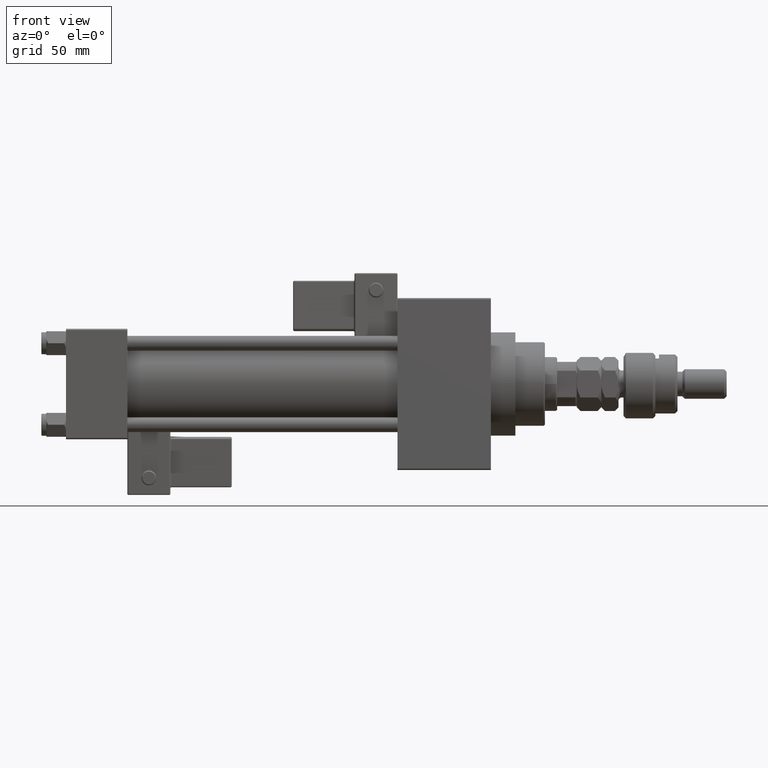
[diagram: clean part render]
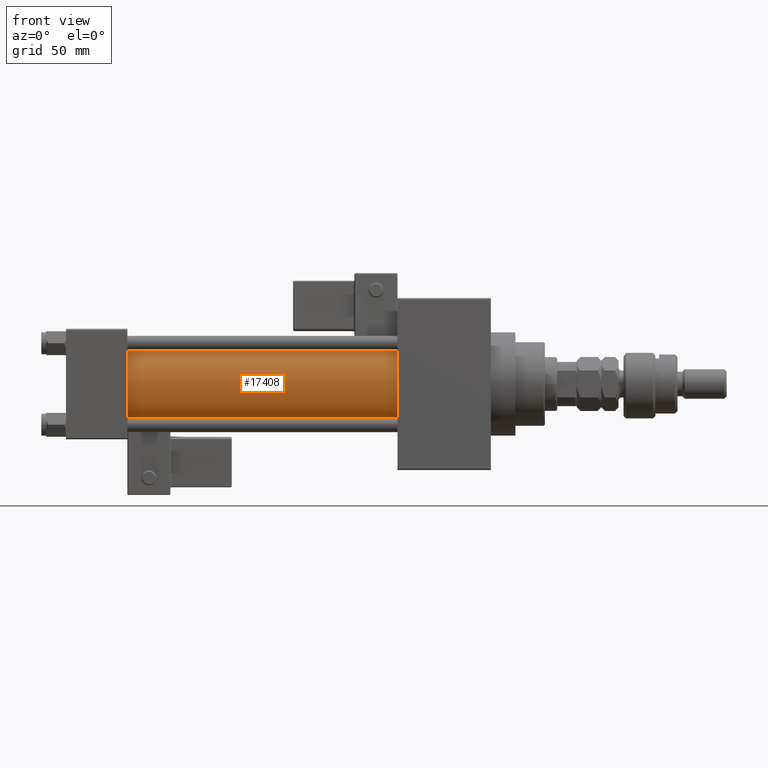
[diagram: same view with one face highlighted and labeled with its STEP entity id]
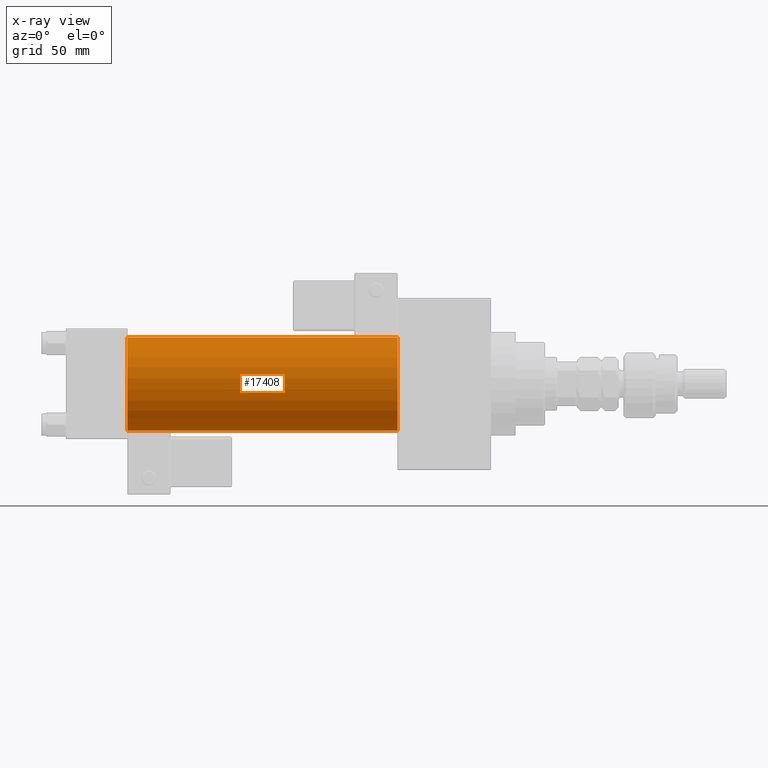
[diagram: x-ray of the same camera — body ghosted, the highlighted face saturated]
A machine part, front view. The second image highlights one B-rep face of the part: STEP entity #17408.
The next image is the same camera in x-ray: the body ghosted, the highlighted face saturated — about 0% of this face is hidden behind the body in this view.
In plain terms, the highlighted cylindrical surface (partial cylindrical patch) has radius 19 mm, axis along (-1, -0, -0).
Its self-contained STEP definition (entity closure, byte-faithful):
#1885 = CARTESIAN_POINT ( 'NONE',  ( 135.0000000000000000, -2.602085213965210642E-15, 19.00000000000000000 ) ) ;
#2328 = EDGE_CURVE ( 'NONE', #6091, #54136, #30664, .T. ) ;
#4030 = EDGE_CURVE ( 'NONE', #54136, #42906, #39319, .T. ) ;
#4797 = DIRECTION ( 'NONE',  ( -1.000000000000000000, -0.000000000000000000, -0.000000000000000000 ) ) ;
#6091 = VERTEX_POINT ( 'NONE', #7346 ) ;
#6566 = CYLINDRICAL_SURFACE ( 'NONE', #22304, 19.00000000000000000 ) ;
#7346 = CARTESIAN_POINT ( 'NONE',  ( 135.0000000000000000, -2.602085213965210642E-15, 19.00000000000000000 ) ) ;
#10232 = ORIENTED_EDGE ( 'NONE', *, *, #39417, .F. ) ;
#10669 = FACE_OUTER_BOUND ( 'NONE', #46422, .T. ) ;
#11807 = ORIENTED_EDGE ( 'NONE', *, *, #2328, .T. ) ;
#12424 = CARTESIAN_POINT ( 'NONE',  ( 135.0000000000000000, -2.752562955852396712E-16, -19.00000000000000000 ) ) ;
#14252 = VECTOR ( 'NONE', #4797, 1000.000000000000000 ) ;
#16738 = CARTESIAN_POINT ( 'NONE',  ( 135.0000000000000000, -2.602085213965210642E-15, 0.000000000000000000 ) ) ;
#16967 = DIRECTION ( 'NONE',  ( -1.000000000000000000, -0.000000000000000000, -0.000000000000000000 ) ) ;
#17408 = ADVANCED_FACE ( 'NONE', ( #10669 ), #6566, .T. ) ;
#18367 = ORIENTED_EDGE ( 'NONE', *, *, #4030, .T. ) ;
#20684 = CARTESIAN_POINT ( 'NONE',  ( 135.0000000000000000, -2.752562955852396712E-16, -19.00000000000000000 ) ) ;
#22285 = DIRECTION ( 'NONE',  ( 0.000000000000000000, 0.000000000000000000, 1.000000000000000000 ) ) ;
#22304 = AXIS2_PLACEMENT_3D ( 'NONE', #27638, #16967, #50396 ) ;
#22803 = CARTESIAN_POINT ( 'NONE',  ( 24.99999999999999289, -2.602085213965210642E-15, 0.000000000000000000 ) ) ;
#25833 = DIRECTION ( 'NONE',  ( 1.000000000000000000, -0.000000000000000000, 0.000000000000000000 ) ) ;
#25851 = VERTEX_POINT ( 'NONE', #12424 ) ;
#27638 = CARTESIAN_POINT ( 'NONE',  ( 135.0000000000000000, -2.602085213965210642E-15, 0.000000000000000000 ) ) ;
#27717 = ORIENTED_EDGE ( 'NONE', *, *, #35922, .F. ) ;
#30664 = LINE ( 'NONE', #1885, #31518 ) ;
#30792 = AXIS2_PLACEMENT_3D ( 'NONE', #16738, #50160, #41938 ) ;
#31518 = VECTOR ( 'NONE', #39956, 1000.000000000000000 ) ;
#33294 = LINE ( 'NONE', #20684, #14252 ) ;
#35171 = CIRCLE ( 'NONE', #30792, 19.00000000000000000 ) ;
#35922 = EDGE_CURVE ( 'NONE', #25851, #42906, #33294, .T. ) ;
#39319 = CIRCLE ( 'NONE', #42845, 19.00000000000000000 ) ;
#39417 = EDGE_CURVE ( 'NONE', #6091, #25851, #35171, .T. ) ;
#39956 = DIRECTION ( 'NONE',  ( -1.000000000000000000, -0.000000000000000000, -0.000000000000000000 ) ) ;
#41938 = DIRECTION ( 'NONE',  ( 0.000000000000000000, 0.000000000000000000, -1.000000000000000000 ) ) ;
#42845 = AXIS2_PLACEMENT_3D ( 'NONE', #22803, #25833, #22285 ) ;
#42906 = VERTEX_POINT ( 'NONE', #45566 ) ;
#45566 = CARTESIAN_POINT ( 'NONE',  ( 24.99999999999999289, -2.752562955852396712E-16, -19.00000000000000000 ) ) ;
#46422 = EDGE_LOOP ( 'NONE', ( #27717, #10232, #11807, #18367 ) ) ;
#50160 = DIRECTION ( 'NONE',  ( 1.000000000000000000, 0.000000000000000000, 0.000000000000000000 ) ) ;
#50396 = DIRECTION ( 'NONE',  ( 0.000000000000000000, 0.000000000000000000, 1.000000000000000000 ) ) ;
#50902 = CARTESIAN_POINT ( 'NONE',  ( 24.99999999999999289, -2.602085213965210642E-15, 19.00000000000000000 ) ) ;
#54136 = VERTEX_POINT ( 'NONE', #50902 ) ;